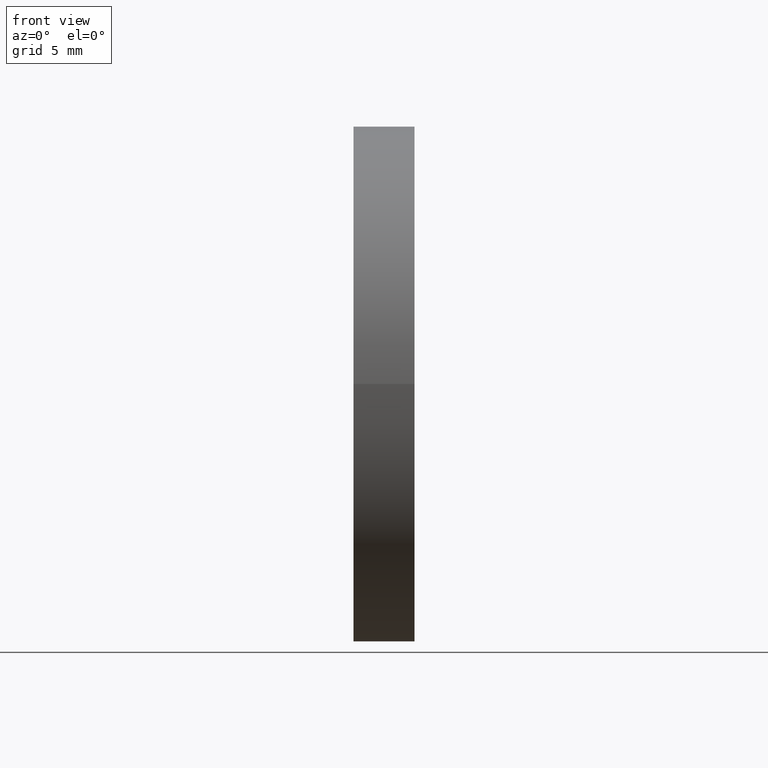
[diagram: clean part render]
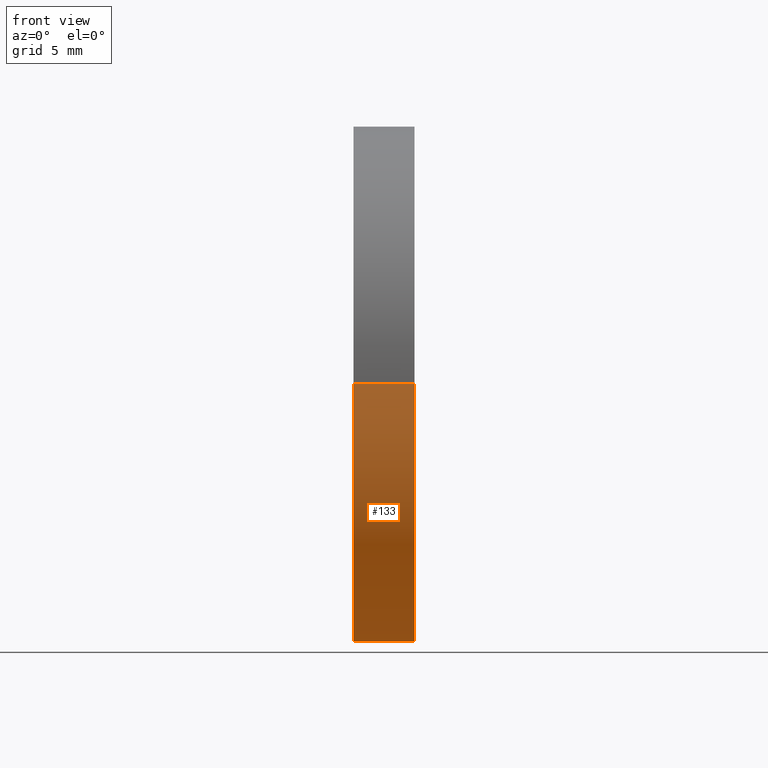
[diagram: same view with one face highlighted and labeled with its STEP entity id]
A machine part, front view. The second image highlights one B-rep face of the part: STEP entity #133.
In plain terms, the highlighted cylindrical surface (partial cylindrical patch) has radius 12.5 mm, axis along (-1, 0, -0).
Its self-contained STEP definition (entity closure, byte-faithful):
#3 = EDGE_CURVE ( 'NONE', #114, #83, #98, .T. ) ;
#4 = CARTESIAN_POINT ( 'NONE',  ( 60.31197721033621700, 45.07872591329306300, 1.530808498934187800E-015 ) ) ;
#8 = LINE ( 'NONE', #129, #125 ) ;
#11 = EDGE_CURVE ( 'NONE', #114, #60, #52, .T. ) ;
#18 = CARTESIAN_POINT ( 'NONE',  ( 57.35819015802111000, 32.57872591329309800, 0.0000000000000000000 ) ) ;
#19 = ORIENTED_EDGE ( 'NONE', *, *, #3, .F. ) ;
#23 = AXIS2_PLACEMENT_3D ( 'NONE', #82, #68, #95 ) ;
#33 = CYLINDRICAL_SURFACE ( 'NONE', #23, 12.50000000000000000 ) ;
#34 = FACE_OUTER_BOUND ( 'NONE', #135, .T. ) ;
#44 = ORIENTED_EDGE ( 'NONE', *, *, #73, .F. ) ;
#50 = ORIENTED_EDGE ( 'NONE', *, *, #94, .T. ) ;
#52 = CIRCLE ( 'NONE', #113, 12.50000000000000000 ) ;
#55 = DIRECTION ( 'NONE',  ( -1.000000000000000000, 7.636108817321419600E-016, -0.0000000000000000000 ) ) ;
#58 = VERTEX_POINT ( 'NONE', #145 ) ;
#60 = VERTEX_POINT ( 'NONE', #140 ) ;
#62 = DIRECTION ( 'NONE',  ( -1.000000000000000000, 7.636108817321419600E-016, -0.0000000000000000000 ) ) ;
#64 = CARTESIAN_POINT ( 'NONE',  ( 55.00739462442118800, 45.07872591329309100, 1.530808498934191500E-015 ) ) ;
#65 = DIRECTION ( 'NONE',  ( -5.551115123125782700E-016, -1.000000000000000000, 0.0000000000000000000 ) ) ;
#68 = DIRECTION ( 'NONE',  ( -1.000000000000000000, 7.636108817321419600E-016, -0.0000000000000000000 ) ) ;
#73 = EDGE_CURVE ( 'NONE', #83, #58, #110, .T. ) ;
#82 = CARTESIAN_POINT ( 'NONE',  ( 55.00739462442118100, 32.57872591329309800, 0.0000000000000000000 ) ) ;
#83 = VERTEX_POINT ( 'NONE', #128 ) ;
#85 = DIRECTION ( 'NONE',  ( -1.000000000000000000, 7.636108817321419600E-016, -0.0000000000000000000 ) ) ;
#87 = VECTOR ( 'NONE', #55, 1000.000000000000000 ) ;
#89 = CARTESIAN_POINT ( 'NONE',  ( 60.31197721033621700, 32.57872591329309100, 0.0000000000000000000 ) ) ;
#94 = EDGE_CURVE ( 'NONE', #60, #58, #8, .T. ) ;
#95 = DIRECTION ( 'NONE',  ( -5.551115123125782700E-016, -1.000000000000000000, 0.0000000000000000000 ) ) ;
#98 = LINE ( 'NONE', #64, #87 ) ;
#110 = CIRCLE ( 'NONE', #111, 12.49999999999999600 ) ;
#111 = AXIS2_PLACEMENT_3D ( 'NONE', #18, #85, #158 ) ;
#113 = AXIS2_PLACEMENT_3D ( 'NONE', #89, #62, #65 ) ;
#114 = VERTEX_POINT ( 'NONE', #4 ) ;
#125 = VECTOR ( 'NONE', #159, 1000.000000000000000 ) ;
#128 = CARTESIAN_POINT ( 'NONE',  ( 57.35819015802111700, 45.07872591329309100, 1.530808498934191900E-015 ) ) ;
#129 = CARTESIAN_POINT ( 'NONE',  ( 55.00739462442117400, 20.07872591329309500, 0.0000000000000000000 ) ) ;
#133 = ADVANCED_FACE ( 'NONE', ( #34 ), #33, .T. ) ;
#135 = EDGE_LOOP ( 'NONE', ( #19, #146, #50, #44 ) ) ;
#140 = CARTESIAN_POINT ( 'NONE',  ( 60.31197721033620200, 20.07872591329312000, 0.0000000000000000000 ) ) ;
#145 = CARTESIAN_POINT ( 'NONE',  ( 57.35819015802110200, 20.07872591329309800, 0.0000000000000000000 ) ) ;
#146 = ORIENTED_EDGE ( 'NONE', *, *, #11, .T. ) ;
#158 = DIRECTION ( 'NONE',  ( -5.551115123125784700E-016, -1.000000000000000000, 0.0000000000000000000 ) ) ;
#159 = DIRECTION ( 'NONE',  ( -1.000000000000000000, 7.636108817321419600E-016, -0.0000000000000000000 ) ) ;